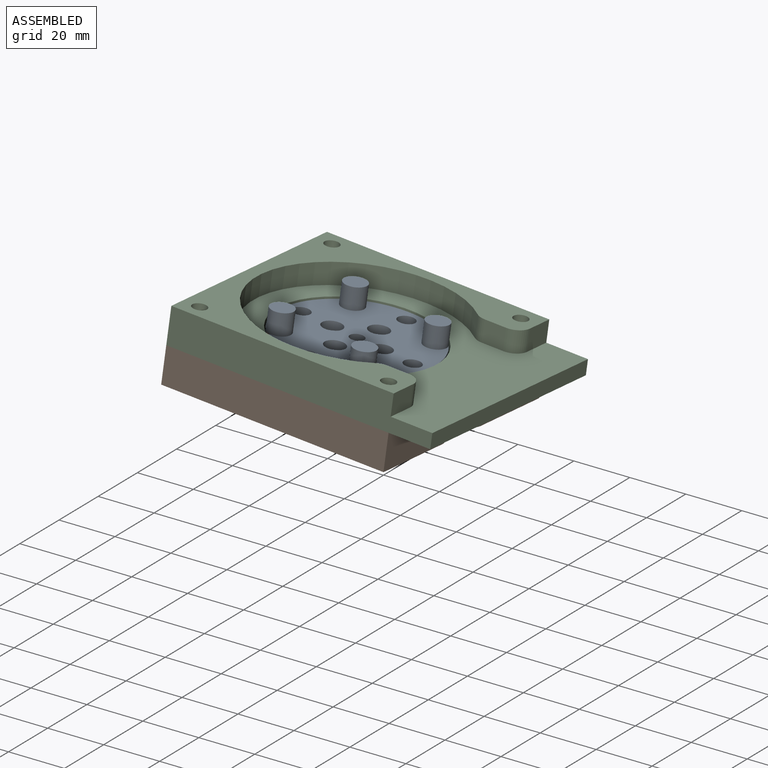
[diagram: assembled view]
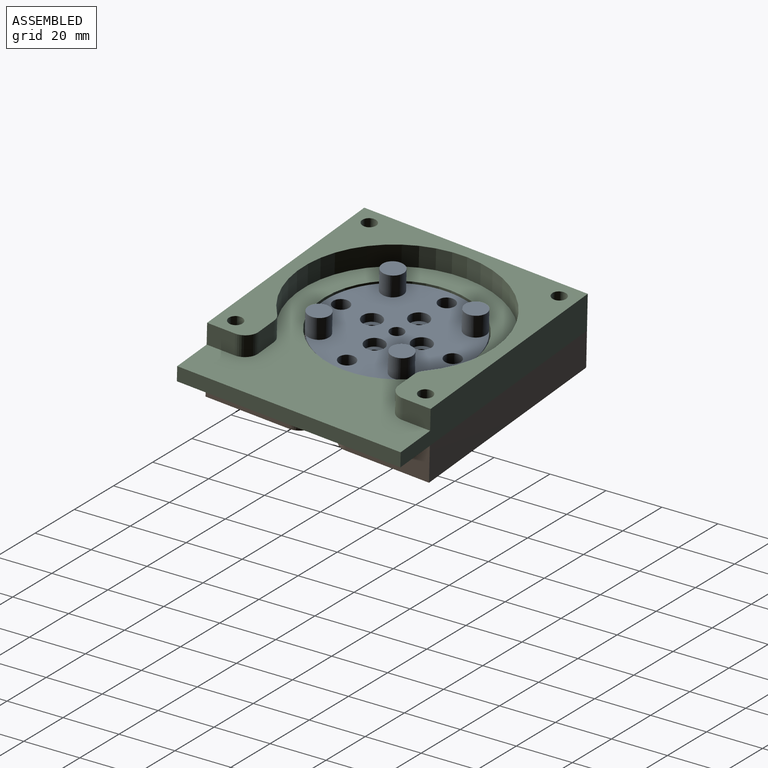
[diagram: assembled view, second angle]
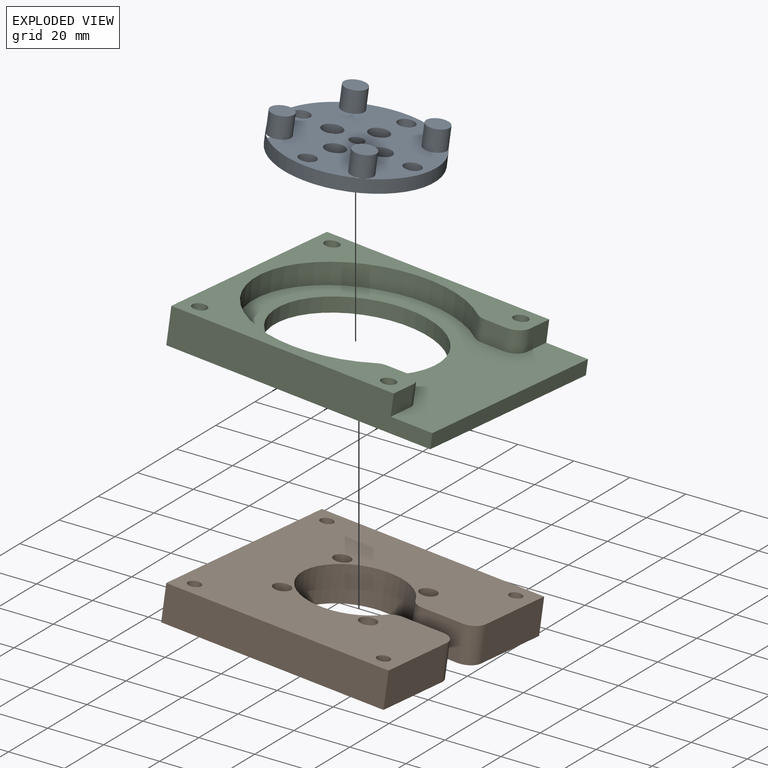
[diagram: exploded view]
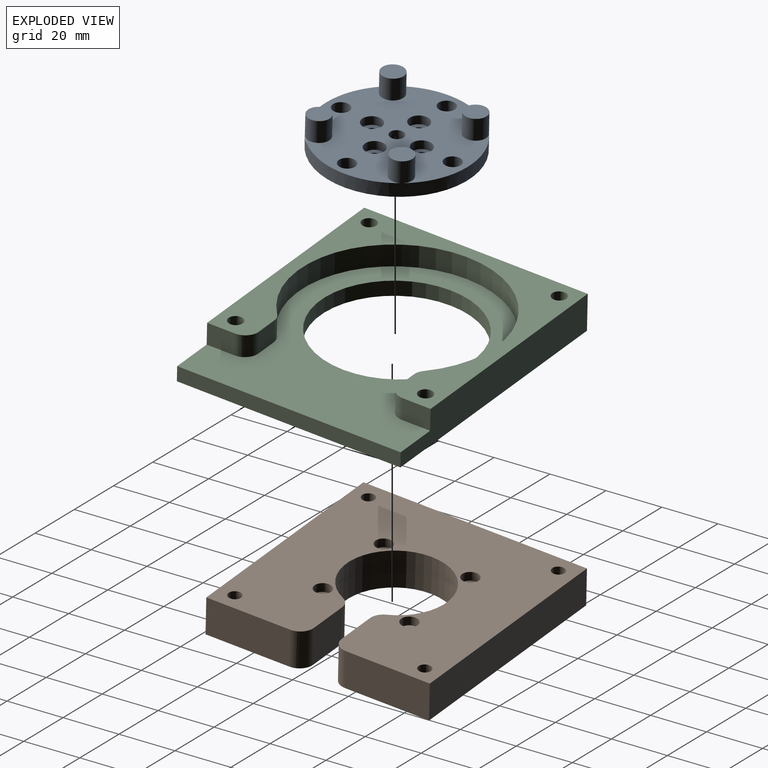
[diagram: exploded view, second angle]
ASSEMBLY  parts=3 mates=2
PART A: 28 faces, bbox 70x70x28.2 mm
  f0: cylinder r=1.83mm len=3.66mm, axis (0,0,-1), area 19.5mm2, adj f11,f23
  f1: cylinder r=1.83mm len=3.66mm, axis (0,0,-1), area 19.5mm2, adj f11,f25
  f2: cylinder r=1.83mm len=3.66mm, axis (0,0,-1), area 19.5mm2, adj f11,f21
  f3: cylinder r=1.83mm len=3.66mm, axis (0,0,-1), area 19.5mm2, adj f11,f27
  f4: cylinder r=3mm len=6mm, axis (0,0,-1), area 88.6mm2, adj f10,f11
  f5: cylinder r=3mm len=6mm, axis (0,0,-1), area 88.6mm2, adj f10,f11
  f6: cylinder r=3mm len=6mm, axis (0,0,-1), area 88.6mm2, adj f10,f11
  f7: cylinder r=2.5mm len=5mm, axis (0,0,-1), area 73.8mm2, adj f10,f11
  f8: cylinder r=27mm len=54mm, axis (0,0,-1), area 797.3mm2, adj f10,f11
  f9: cylinder r=3mm len=6mm, axis (0,0,-1), area 88.6mm2, adj f10,f11
  f10: plane 54x54mm, normal (0,0,1), area 1797.5mm2, adj f4,f5,f6,f7,f8,f9,f12,f14
  f11: plane 54x54mm, normal (0,0,-1), area 2115.5mm2, adj f0,f1,f2,f3,f4,f5,f6,f7
  f12: cylinder r=4mm len=8mm, axis (0,0,-1), area 188.5mm2, adj f10,f13
  f13: plane 8x8mm, normal (0,0,1), area 50.3mm2, adj f12
  f14: cylinder r=4mm len=8mm, axis (0,0,-1), area 188.5mm2, adj f10,f15
  f15: plane 8x8mm, normal (0,0,1), area 50.3mm2, adj f14
  f16: cylinder r=4mm len=8mm, axis (0,0,-1), area 188.5mm2, adj f10,f17
  f17: plane 8x8mm, normal (0,0,1), area 50.3mm2, adj f16
  f18: cylinder r=4mm len=8mm, axis (0,0,-1), area 188.5mm2, adj f10,f19
  f19: plane 24x24mm, normal (0,0,1), area 100.5mm2, adj f18
  f20: cylinder r=3.56mm len=7.11mm, axis (0,0,1), area 67mm2, adj f10,f21
  f21: plane 7.11x7.11mm, normal (0,0,1), area 29.2mm2, adj f2,f20
  f22: cylinder r=3.56mm len=7.11mm, axis (0,0,1), area 67mm2, adj f10,f23
  f23: plane 7.11x7.11mm, normal (0,0,1), area 29.2mm2, adj f0,f22
  f24: cylinder r=3.56mm len=7.11mm, axis (0,0,1), area 67mm2, adj f10,f25
  f25: plane 7.11x7.11mm, normal (0,0,1), area 29.2mm2, adj f1,f24
  f26: cylinder r=3.56mm len=7.11mm, axis (0,0,1), area 67mm2, adj f10,f27
  f27: plane 7.11x7.11mm, normal (0,0,1), area 29.2mm2, adj f3,f26
PART B: 30 faces, bbox 80x80x12.7 mm
  f0: cylinder r=1.75mm len=9.7mm, axis (0,0,-1), area 106.7mm2, adj f21,f29
  f1: cylinder r=1.75mm len=9.7mm, axis (0,0,-1), area 106.7mm2, adj f21,f27
  f2: cylinder r=1.75mm len=9.7mm, axis (0,0,-1), area 106.7mm2, adj f21,f25
  f3: cylinder r=1.75mm len=9.7mm, axis (0,0,-1), area 106.7mm2, adj f21,f23
  f4: cylinder r=18mm len=36mm, axis (0,0,-1), area 1230.7mm2, adj f5,f19,f20,f21
  f5: cylinder r=5mm len=12.7mm, axis (0,0,-1), area 71.2mm2, adj f4,f6,f20,f21
  f6: plane 14.29x12.7mm, normal (0,-1,0), area 181.5mm2, adj f5,f7,f20,f21
  f7: cylinder r=5mm len=12.7mm, axis (0,0,-1), area 99.7mm2, adj f6,f8,f20,f21
  f8: plane 30x12.7mm, normal (1,0,0), area 381mm2, adj f7,f9,f20,f21
  f9: plane 80x12.7mm, normal (0,1,0), area 1016mm2, adj f8,f10,f20,f21
  f10: plane 80x12.7mm, normal (-1,0,0), area 1016mm2, adj f9,f11,f20,f21
  f11: plane 80x12.7mm, normal (0,-1,0), area 1016mm2, adj f10,f12,f20,f21
  f12: plane 30x12.7mm, normal (1,0,0), area 381mm2, adj f11,f13,f20,f21
  f13: cylinder r=5mm len=12.7mm, axis (0,0,-1), area 99.7mm2, adj f12,f14,f20,f21
  f14: plane 14.29x12.7mm, normal (0,1,0), area 181.5mm2, adj f13,f19,f20,f21
  f15: cylinder r=2.25mm len=12.7mm, axis (0,0,-1), area 179.5mm2, adj f20,f21
  f16: cylinder r=2.25mm len=12.7mm, axis (0,0,-1), area 179.5mm2, adj f20,f21
  f17: cylinder r=2.25mm len=12.7mm, axis (0,0,-1), area 179.5mm2, adj f20,f21
  f18: cylinder r=2.25mm len=12.7mm, axis (0,0,-1), area 179.5mm2, adj f20,f21
  f19: cylinder r=5mm len=12.7mm, axis (0,0,-1), area 71.2mm2, adj f4,f14,f20,f21
  f20: plane 80x80mm, normal (0,0,1), area 4968.4mm2, adj f4,f5,f6,f7,f8,f9,f10,f11
  f21: plane 80x80mm, normal (0,0,-1), area 5043.1mm2, adj f0,f1,f2,f3,f4,f5,f6,f7
  f22: cylinder r=3mm len=6mm, axis (0,0,1), area 56.5mm2, adj f20,f23
  f23: plane 6x6mm, normal (0,0,1), area 18.7mm2, adj f3,f22
  f24: cylinder r=3mm len=6mm, axis (0,0,1), area 56.5mm2, adj f20,f25
  f25: plane 6x6mm, normal (0,0,1), area 18.7mm2, adj f2,f24
  f26: cylinder r=3mm len=6mm, axis (0,0,1), area 56.5mm2, adj f20,f27
  f27: plane 6x6mm, normal (0,0,1), area 18.7mm2, adj f1,f26
  f28: cylinder r=3mm len=6mm, axis (0,0,1), area 56.5mm2, adj f20,f29
  f29: plane 6x6mm, normal (0,0,1), area 18.7mm2, adj f0,f28
PART C: 21 faces, bbox 95x80x12.7 mm
  f0: plane 80x5.2mm, normal (1,0,0), area 416mm2, adj f2,f5,f10,f20
  f1: cylinder r=27.5mm len=55mm, axis (0,0,-1), area 898.5mm2, adj f10,f20
  f2: plane 95x12.7mm, normal (0,1,0), area 1094mm2, adj f0,f3,f4,f10,f12,f20
  f3: plane 80x80mm, normal (0,0,1), area 1962.2mm2, adj f2,f4,f5,f6,f7,f8,f9,f11
  f4: plane 80x12.7mm, normal (-1,0,0), area 1016mm2, adj f2,f3,f5,f10
  f5: plane 95x12.7mm, normal (0,-1,0), area 1094mm2, adj f0,f3,f4,f10,f11,f20
  f6: cylinder r=2.55mm len=12.7mm, axis (0,0,-1), area 203.5mm2, adj f3,f10
  f7: cylinder r=2.55mm len=12.7mm, axis (0,0,-1), area 203.5mm2, adj f3,f10
  f8: cylinder r=2.55mm len=12.7mm, axis (0,0,-1), area 203.5mm2, adj f3,f10
  f9: cylinder r=2.55mm len=12.7mm, axis (0,0,-1), area 203.5mm2, adj f3,f10
  f10: plane 95x80mm, normal (0,0,-1), area 5142.5mm2, adj f0,f1,f2,f4,f5,f6,f7,f8
  f11: plane 10x7.5mm, normal (1,0,0), area 75mm2, adj f3,f5,f19,f20
  f12: plane 10x7.5mm, normal (1,0,0), area 75mm2, adj f2,f3,f13,f20
  f13: cylinder r=5mm len=7.5mm, axis (0,0,1), area 58.9mm2, adj f3,f12,f14,f20
  f14: plane 7.79x7.5mm, normal (0,-1,0), area 58.4mm2, adj f3,f13,f15,f20
  f15: cylinder r=5mm len=7.5mm, axis (0,0,1), area 27.6mm2, adj f3,f14,f16,f20
  f16: cylinder r=35.5mm len=71mm, axis (0,0,1), area 1228.7mm2, adj f3,f15,f17,f20
  f17: cylinder r=5mm len=7.5mm, axis (0,0,1), area 27.6mm2, adj f3,f16,f18,f20
  f18: plane 7.79x7.5mm, normal (0,1,0), area 58.4mm2, adj f3,f17,f19,f20
  f19: cylinder r=5mm len=7.5mm, axis (0,0,1), area 58.9mm2, adj f3,f11,f18,f20
  f20: plane 90.5x80mm, normal (0,0,1), area 3180.3mm2, adj f0,f1,f2,f5,f11,f12,f13,f14
PLACE A rot(axis=(-0.13,0.05,-0.99),52.1deg) t=(-56.09,-68.31,11.9)mm
PLACE B rot(axis=(-0.69,0.72,-0.01),6.8deg) t=(-56.09,-68.31,11.9)mm
PLACE C rot(axis=(-0.69,0.72,-0.01),6.8deg) t=(-55.01,-67.27,24.51)mm
MATE fastened C.f9 <-> B.f18  axis (-0.09,-0.08,-0.99) through (-88.79,-101,30.23)mm
MATE revolute A.f7 <-> B.f4  axis (-0.09,-0.08,-0.99) through (-55.01,-67.27,24.51)mm
